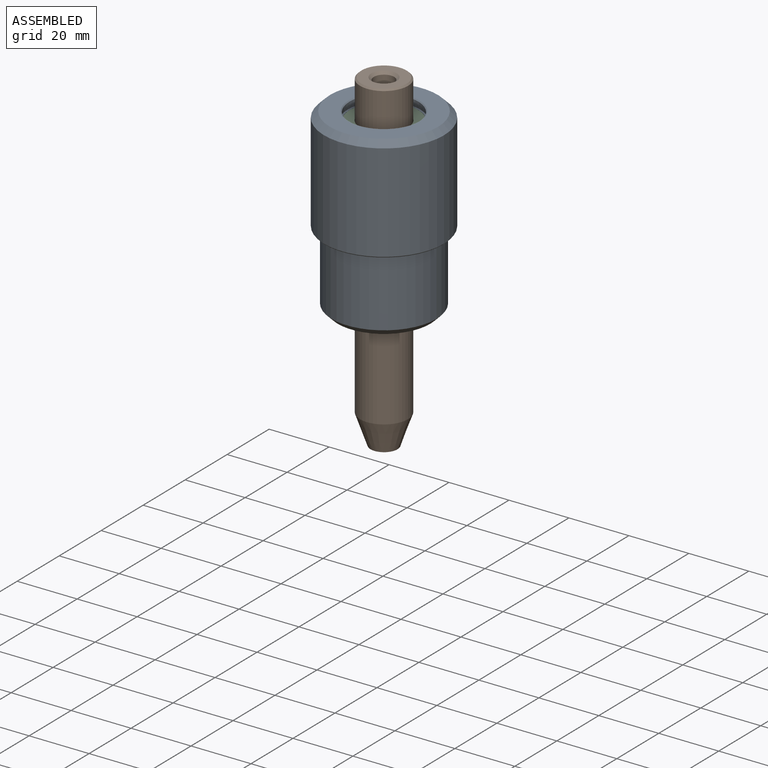
[diagram: assembled view]
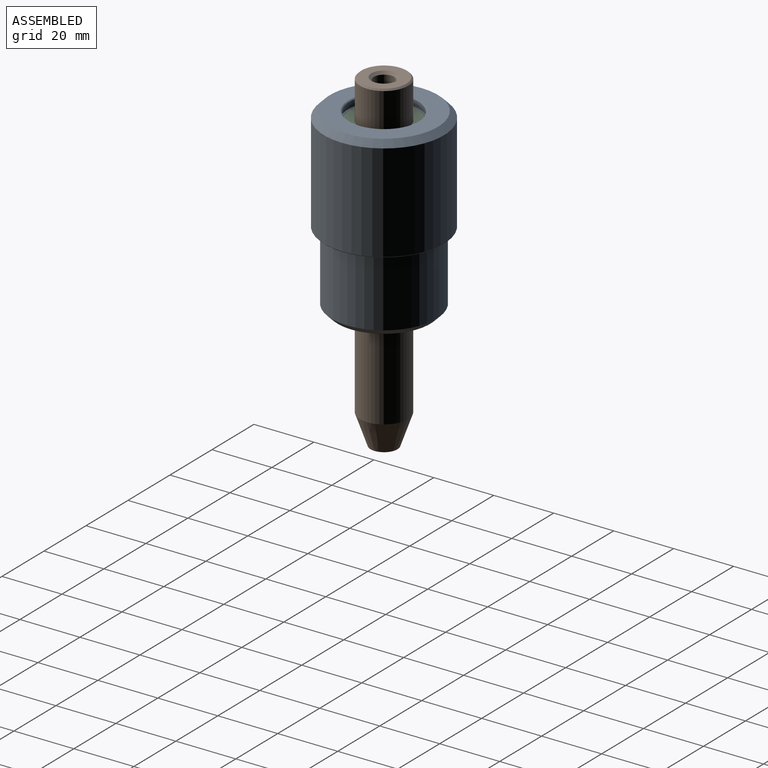
[diagram: assembled view, second angle]
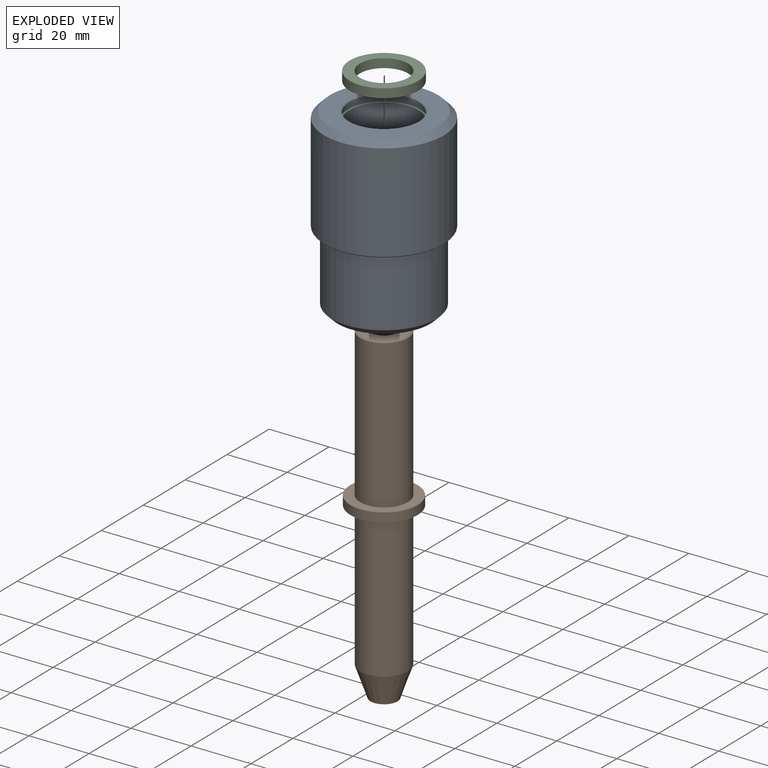
[diagram: exploded view]
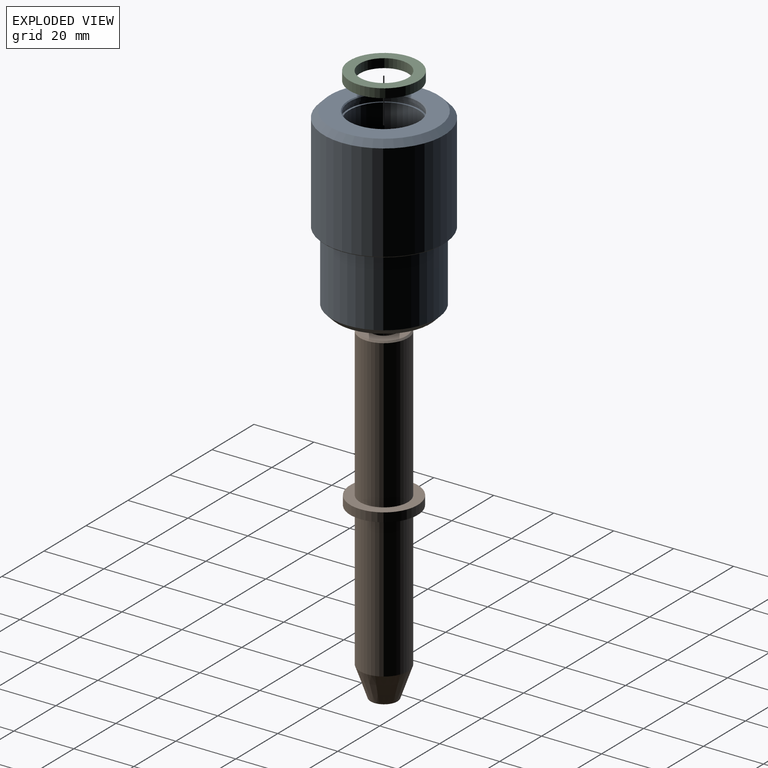
[diagram: exploded view, second angle]
ASSEMBLY  parts=3 mates=2
PART A: 17 faces, bbox 40x40x60 mm
  f0: cylinder r=8.05mm len=16.9mm, axis (0,0,-1), area 854.8mm2, adj f1,f15
  f1: plane 23x23mm, normal (0,0,1), area 211.9mm2, adj f0,f2
  f2: cylinder r=11.5mm len=40mm, axis (0,0,-1), area 2890.3mm2, adj f1,f3
  f3: plane 24.2x24.2mm, normal (0,0,1), area 44.5mm2, adj f2,f4
  f4: cylinder r=12.1mm len=24.2mm, axis (0,0,-1), area 98.8mm2, adj f3,f5
  f5: plane 24.2x24.2mm, normal (0,0,-1), area 44.5mm2, adj f4,f6
  f6: cylinder r=11.5mm len=23mm, axis (0,0,-1), area 86.7mm2, adj f5,f16
  f7: plane 36x36mm, normal (0,0,1), area 580.4mm2, adj f13,f16
  f8: cylinder r=20mm len=40mm, axis (0,0,-1), area 4109.2mm2, adj f13,f14
  f9: plane 39.4x39.4mm, normal (0,0,-1), area 257.1mm2, adj f10,f14
  f10: cylinder r=17.5mm len=35mm, axis (0,0,-1), area 2529mm2, adj f9,f12
  f11: plane 31x31mm, normal (0,0,-1), area 535.7mm2, adj f12,f15
  f12: cone r=15.5mm half-angle=45deg, axis (0,0,1), area 293.2mm2, adj f10,f11
  f13: cone r=20mm half-angle=45deg, axis (0,0,-1), area 337.7mm2, adj f7,f8
  f14: cone r=19.7mm half-angle=45deg, axis (0,0,1), area 52.9mm2, adj f8,f9
  f15: cone r=8.05mm half-angle=45deg, axis (0,0,-1), area 21.9mm2, adj f0,f11
  f16: cone r=11.8mm half-angle=45deg, axis (0,0,1), area 31.1mm2, adj f6,f7
PART B: 12 faces, bbox 22.5x22.5x111 mm
  f0: plane 9x9mm, normal (0,0,-1), area 63.6mm2, adj f7
  f1: plane 15x15mm, normal (0,0,1), area 120mm2, adj f9,f11
  f2: cylinder r=8mm len=49.5mm, axis (0,0,1), area 2488.1mm2, adj f3,f11
  f3: plane 22.5x22.5mm, normal (0,0,1), area 196.5mm2, adj f2,f4
  f4: cylinder r=11.25mm len=22.5mm, axis (0,0,1), area 212.1mm2, adj f3,f5
  f5: plane 22.5x22.5mm, normal (0,0,-1), area 196.5mm2, adj f4,f6
  f6: cylinder r=8mm len=48mm, axis (0,0,1), area 2412.7mm2, adj f5,f7
  f7: cone r=4.5mm half-angle=19.3deg, axis (0,0,1), area 416.1mm2, adj f0,f6
  f8: cylinder r=3.4mm len=17.15mm, axis (0,0,1), area 366.4mm2, adj f9,f10
  f9: cone r=3.4mm half-angle=45deg, axis (0,0,1), area 28.9mm2, adj f1,f8
  f10: cone r=0mm half-angle=59deg, axis (0,0,1), area 42.4mm2, adj f8
  f11: cone r=7.5mm half-angle=45deg, axis (0,0,-1), area 34.4mm2, adj f1,f2
PART C: 4 faces, bbox 22.9x22.9x3 mm
  f0: cylinder r=8.05mm len=16.1mm, axis (0,0,-1), area 151.7mm2, adj f2,f3
  f1: cylinder r=11.45mm len=22.9mm, axis (0,0,-1), area 215.8mm2, adj f2,f3
  f2: plane 22.9x22.9mm, normal (0,0,1), area 208.3mm2, adj f0,f1
  f3: plane 22.9x22.9mm, normal (0,0,-1), area 208.3mm2, adj f0,f1
PLACE A t=(-12.51,32.68,25.5)mm
PLACE B t=(-12.51,32.68,2.97)mm
PLACE C t=(-12.51,32.68,64.37)mm
MATE slider B.f2 <-> A.f0  axis (0,0,1) through (-12.51,32.68,80.37)mm
MATE fastened C.f1 <-> A.f0  axis (0,0,1) through (-12.51,32.68,67.37)mm
